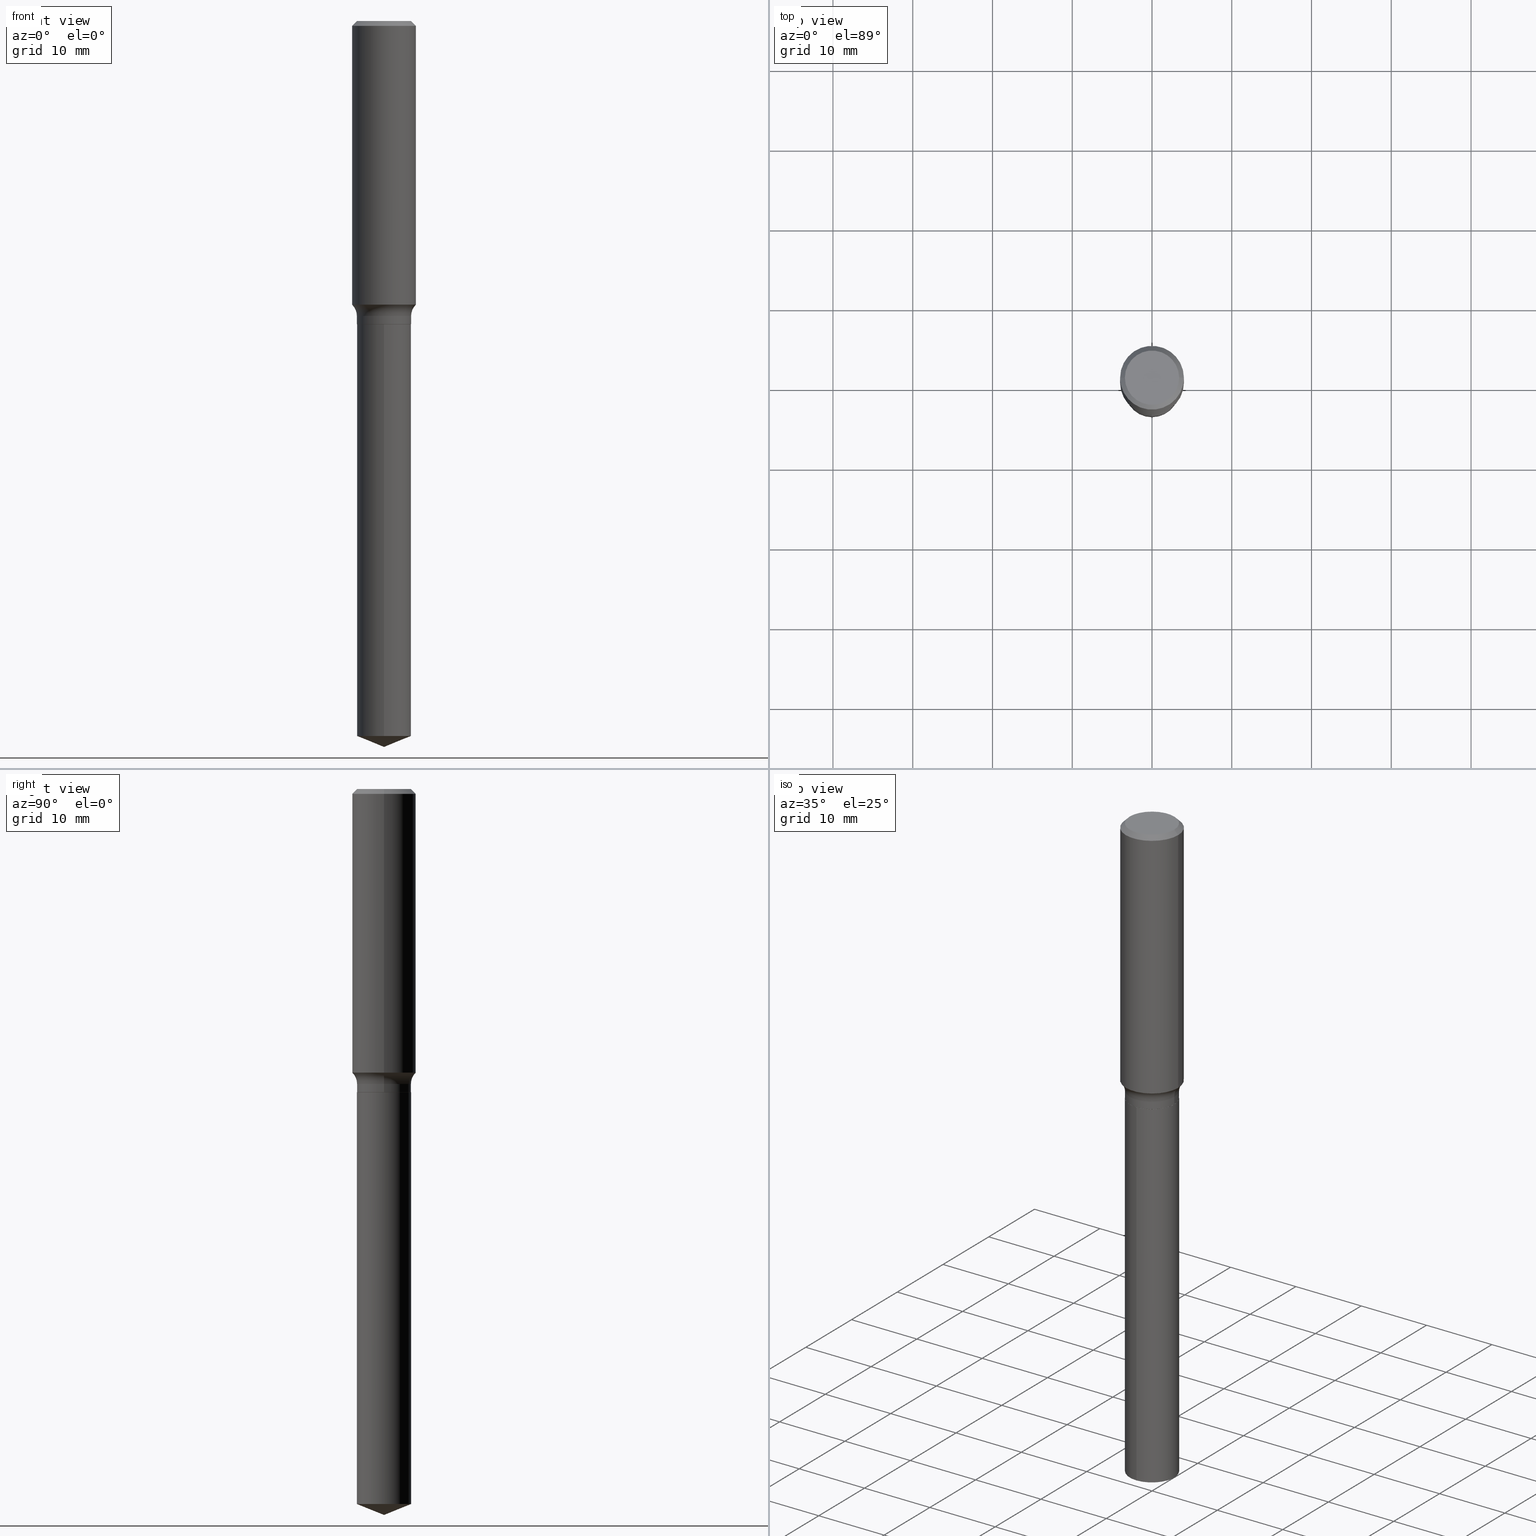
[diagram: canonical four-view strip — front | top / right | iso, engineering-drawing reading convention]
A machine part, canonical four-view strip (front | top / right | iso — engineering-drawing reading convention). The complete STEP part file that produces these views, byte-faithful:
ISO-10303-21;
HEADER;
FILE_DESCRIPTION (( 'STEP AP203' ),
    '1' );
FILE_NAME ('69261.STEP',
    '2024-04-19T17:33:43',
    ( '' ),
    ( '' ),
    'SwSTEP 2.0',
    'SolidWorks 2023',
    '' );
FILE_SCHEMA (( 'CONFIG_CONTROL_DESIGN' ));
ENDSEC;

DATA;
#1 = AXIS2_PLACEMENT_3D ( 'NONE', #333, #373, #66 ) ;
#2 = APPROVAL ( #421, 'UNSPECIFIED' ) ;
#3 = PERSON_AND_ORGANIZATION ( #263, #174 ) ;
#4 = DIRECTION ( 'NONE',  ( -2.445445601509706497E-29, 3.491514569259089389E-15, 1.000000000000000000 ) ) ;
#5 = MANIFOLD_SOLID_BREP ( 'Body-Move/Copy2[2]', #432 ) ;
#6 = CARTESIAN_POINT ( 'NONE',  ( 0.1575000000000000566, -1.099816621735587480E-15, 7.679978421878602237E-30 ) ) ;
#7 = ADVANCED_FACE ( 'NONE', ( #118 ), #454, .T. ) ;
#8 = DIRECTION ( 'NONE',  ( 1.000000000000000000, -6.982962677686265922E-15, 0.000000000000000000 ) ) ;
#9 = AXIS2_PLACEMENT_3D ( 'NONE', #445, #140, #371 ) ;
#10 = CC_DESIGN_PERSON_AND_ORGANIZATION_ASSIGNMENT ( #110, #260, ( #88 ) ) ;
#11 = FACE_OUTER_BOUND ( 'NONE', #22, .T. ) ;
#12 = CARTESIAN_POINT ( 'NONE',  ( 0.1338499999999999968, -9.346695544083067345E-16, 6.526762614402859683E-30 ) ) ;
#13 = ORIENTED_EDGE ( 'NONE', *, *, #102, .F. ) ;
#14 = ADVANCED_FACE ( 'NONE', ( #123 ), #349, .T. ) ;
#15 = DIRECTION ( 'NONE',  ( 1.000000000000000000, -6.982962677686267499E-15, 0.000000000000000000 ) ) ;
#16 = ORIENTED_EDGE ( 'NONE', *, *, #459, .T. ) ;
#17 = AXIS2_PLACEMENT_3D ( 'NONE', #203, #469, #472 ) ;
#18 = EDGE_CURVE ( 'NONE', #322, #356, #378, .T. ) ;
#19 = CARTESIAN_POINT ( 'NONE',  ( 3.560113488044320975E-29, -5.082898533087850950E-15, -1.455799999999999761 ) ) ;
#20 = EDGE_LOOP ( 'NONE', ( #261, #440, #364, #13 ) ) ;
#21 = CYLINDRICAL_SURFACE ( 'NONE', #92, 0.1338499999999999968 ) ;
#22 = EDGE_LOOP ( 'NONE', ( #133, #370, #131, #249 ) ) ;
#23 = CARTESIAN_POINT ( 'NONE',  ( 0.1338499999999999968, -6.157576489183768779E-15, -1.495900000000000230 ) ) ;
#24 = LOCAL_TIME ( 13, 33, 43.00000000000000000, #381 ) ;
#25 = VERTEX_POINT ( 'NONE', #298 ) ;
#26 = AXIS2_PLACEMENT_3D ( 'NONE', #407, #134, #285 ) ;
#27 = CYLINDRICAL_SURFACE ( 'NONE', #330, 0.1575000000000000566 ) ;
#28 = EDGE_CURVE ( 'NONE', #138, #57, #33, .T. ) ;
#29 = FACE_OUTER_BOUND ( 'NONE', #286, .T. ) ;
#30 = DIRECTION ( 'NONE',  ( -0.7071067811865450192, 2.468850131082230634E-15, -0.7071067811865500152 ) ) ;
#31 = EDGE_CURVE ( 'NONE', #322, #327, #107, .T. ) ;
#32 = CIRCLE ( 'NONE', #197, 0.1333499999999999963 ) ;
#33 = LINE ( 'NONE', #183, #278 ) ;
#34 = EDGE_CURVE ( 'NONE', #350, #57, #222, .T. ) ;
#35 = APPROVAL_DATE_TIME ( #377, #48 ) ;
#36 = PLANE ( 'NONE',  #319 ) ;
#37 = PERSON_AND_ORGANIZATION ( #263, #174 ) ;
#38 = CARTESIAN_POINT ( 'NONE',  ( 8.762031590209278139E-29, -1.251009670165531742E-14, -3.583000000000000185 ) ) ;
#39 = DIRECTION ( 'NONE',  ( -2.445445601509706497E-29, 3.491514569259089389E-15, 1.000000000000000000 ) ) ;
#40 = AXIS2_PLACEMENT_3D ( 'NONE', #267, #39, #269 ) ;
#41 = CIRCLE ( 'NONE', #447, 0.1575000000000001399 ) ;
#42 = EDGE_LOOP ( 'NONE', ( #408, #358, #318, #234 ) ) ;
#43 = PERSON_AND_ORGANIZATION ( #263, #174 ) ;
#44 = DIRECTION ( 'NONE',  ( 1.000000000000000000, -6.982962677686262766E-15, 0.000000000000000000 ) ) ;
#45 = ORIENTED_EDGE ( 'NONE', *, *, #34, .T. ) ;
#46 = CARTESIAN_POINT ( 'NONE',  ( -0.1575000000000000844, -3.768455484205395919E-15, -1.399852904454296887 ) ) ;
#47 = ORIENTED_EDGE ( 'NONE', *, *, #208, .T. ) ;
#48 = APPROVAL ( #192, 'UNSPECIFIED' ) ;
#49 = LINE ( 'NONE', #12, #272 ) ;
#50 = CIRCLE ( 'NONE', #124, 0.1338499999999999968 ) ;
#51 = AXIS2_PLACEMENT_3D ( 'NONE', #210, #287, #326 ) ;
#52 = DIRECTION ( 'NONE',  ( 1.000000000000000000, -6.982962677686266711E-15, 4.883557194083112901E-29 ) ) ;
#53 = ORIENTED_EDGE ( 'NONE', *, *, #459, .F. ) ;
#54 = DIRECTION ( 'NONE',  ( 1.000000000000000000, -6.982962677686262766E-15, 0.000000000000000000 ) ) ;
#55 = ORIENTED_EDGE ( 'NONE', *, *, #214, .T. ) ;
#56 = FACE_OUTER_BOUND ( 'NONE', #391, .T. ) ;
#57 = VERTEX_POINT ( 'NONE', #417 ) ;
#58 = AXIS2_PLACEMENT_3D ( 'NONE', #221, #308, #44 ) ;
#59 = FACE_OUTER_BOUND ( 'NONE', #315, .T. ) ;
#60 = ORIENTED_EDGE ( 'NONE', *, *, #218, .T. ) ;
#61 = LINE ( 'NONE', #374, #386 ) ;
#62 = ORIENTED_EDGE ( 'NONE', *, *, #479, .F. ) ;
#63 = DIRECTION ( 'NONE',  ( -2.445445601509706497E-29, 3.491514569259089389E-15, 1.000000000000000000 ) ) ;
#64 = AXIS2_PLACEMENT_3D ( 'NONE', #442, #176, #444 ) ;
#65 = VECTOR ( 'NONE', #346, 39.37007874015748143 ) ;
#66 = DIRECTION ( 'NONE',  ( -6.982962677686265133E-15, -1.000000000000000000, 4.081954417130015942E-15 ) ) ;
#67 = DIRECTION ( 'NONE',  ( 1.000000000000000000, -6.982962677686266711E-15, 4.876176775795935793E-29 ) ) ;
#68 = EDGE_CURVE ( 'NONE', #438, #327, #306, .T. ) ;
#69 = DATE_AND_TIME ( #414, #396 ) ;
#70 = DIRECTION ( 'NONE',  ( 1.000000000000000000, -6.982962677686267499E-15, 4.876176775795936353E-29 ) ) ;
#71 = ADVANCED_BREP_SHAPE_REPRESENTATION ( '69261', ( #347, #5, #354 ), #419 ) ;
#72 = AXIS2_PLACEMENT_3D ( 'NONE', #337, #384, #83 ) ;
#73 = CALENDAR_DATE ( 2024, 19, 4 ) ;
#74 = APPROVAL_PERSON_ORGANIZATION ( #43, #48, #483 ) ;
#75 = DIRECTION ( 'NONE',  ( -2.445468806185136597E-29, 3.491481338843145583E-15, 1.000000000000000000 ) ) ;
#76 = DIMENSIONAL_EXPONENTS ( 1.000000000000000000, 0.000000000000000000, 0.000000000000000000, 0.000000000000000000, 0.000000000000000000, 0.000000000000000000, 0.000000000000000000 ) ;
#77 = COORDINATED_UNIVERSAL_TIME_OFFSET ( 5, 0, .BEHIND. ) ;
#78 = FACE_OUTER_BOUND ( 'NONE', #100, .T. ) ;
#79 = EDGE_CURVE ( 'NONE', #451, #117, #422, .T. ) ;
#80 = APPROVAL_DATE_TIME ( #416, #2 ) ;
#81 = LINE ( 'NONE', #382, #65 ) ;
#82 = ADVANCED_FACE ( 'NONE', ( #78 ), #36, .F. ) ;
#83 = DIRECTION ( 'NONE',  ( -1.000000000000000000, 7.105427357601001859E-15, 0.000000000000000000 ) ) ;
#84 = CIRCLE ( 'NONE', #293, 0.1575000000000001399 ) ;
#85 = LINE ( 'NONE', #314, #418 ) ;
#86 = CC_DESIGN_PERSON_AND_ORGANIZATION_ASSIGNMENT ( #457, #336, ( #230 ) ) ;
#87 = APPROVAL_DATE_TIME ( #236, #294 ) ;
#88 = SECURITY_CLASSIFICATION ( '', '', #220 ) ;
#89 = CARTESIAN_POINT ( 'NONE',  ( 0.1333499999999999963, -6.155830748514348064E-15, -1.496400000000000396 ) ) ;
#90 = UNCERTAINTY_MEASURE_WITH_UNIT (LENGTH_MEASURE( 1.000000000000000082E-05 ), #179, 'distance_accuracy_value', 'NONE');
#91 = AXIS2_PLACEMENT_3D ( 'NONE', #168, #355, #54 ) ;
#92 = AXIS2_PLACEMENT_3D ( 'NONE', #365, #259, #67 ) ;
#93 = EDGE_CURVE ( 'NONE', #97, #324, #395, .T. ) ;
#94 = DIRECTION ( 'NONE',  ( -2.445468806185136597E-29, 3.491481338843145583E-15, 1.000000000000000000 ) ) ;
#95 = ORIENTED_EDGE ( 'NONE', *, *, #262, .F. ) ;
#96 = DIRECTION ( 'NONE',  ( -1.000000000000000000, 6.982962677686265922E-15, 0.000000000000000000 ) ) ;
#97 = VERTEX_POINT ( 'NONE', #461 ) ;
#98 = CARTESIAN_POINT ( 'NONE',  ( 3.658176787172346501E-29, -5.222906934775461847E-15, -1.495900000000000230 ) ) ;
#99 = TOROIDAL_SURFACE ( 'NONE', #329, 0.2118499999999999828, 0.07799999999999995826 ) ;
#100 = EDGE_LOOP ( 'NONE', ( #156, #121 ) ) ;
#101 = CARTESIAN_POINT ( 'NONE',  ( 0.1575000000000000844, -5.987376914763141792E-15, -1.399852904454296887 ) ) ;
#102 = EDGE_CURVE ( 'NONE', #324, #435, #190, .T. ) ;
#103 = EDGE_CURVE ( 'NONE', #163, #117, #81, .T. ) ;
#104 = ORIENTED_EDGE ( 'NONE', *, *, #307, .T. ) ;
#105 = DIRECTION ( 'NONE',  ( -2.445468806185136597E-29, 3.491481338843145583E-15, 1.000000000000000000 ) ) ;
#106 = DIRECTION ( 'NONE',  ( -2.445468806185136597E-29, 3.491481338843145583E-15, 1.000000000000000000 ) ) ;
#107 = CIRCLE ( 'NONE', #72, 0.07799999999999995826 ) ;
#108 = AXIS2_PLACEMENT_3D ( 'NONE', #255, #482, #215 ) ;
#109 = FACE_OUTER_BOUND ( 'NONE', #167, .T. ) ;
#110 = PERSON_AND_ORGANIZATION ( #263, #174 ) ;
#111 = ORIENTED_EDGE ( 'NONE', *, *, #380, .T. ) ;
#112 = PERSON_AND_ORGANIZATION ( #263, #174 ) ;
#113 = CARTESIAN_POINT ( 'NONE',  ( 0.1333499999999999963, -6.155830748514348064E-15, -1.496400000000000396 ) ) ;
#114 = AXIS2_PLACEMENT_3D ( 'NONE', #415, #75, #70 ) ;
#115 = APPROVAL_ROLE ( '' ) ;
#116 = PRODUCT_DEFINITION_FORMATION_WITH_SPECIFIED_SOURCE ( 'ANY', '', #207, .NOT_KNOWN. ) ;
#117 = VERTEX_POINT ( 'NONE', #491 ) ;
#118 = FACE_OUTER_BOUND ( 'NONE', #426, .T. ) ;
#119 = COORDINATED_UNIVERSAL_TIME_OFFSET ( 5, 0, .BEHIND. ) ;
#120 = LINE ( 'NONE', #151, #335 ) ;
#121 = ORIENTED_EDGE ( 'NONE', *, *, #93, .F. ) ;
#122 = CONICAL_SURFACE ( 'NONE', #91, 0.1333499999999999963, 0.7853981633972775267 ) ;
#123 = FACE_OUTER_BOUND ( 'NONE', #204, .T. ) ;
#124 = AXIS2_PLACEMENT_3D ( 'NONE', #275, #464, #15 ) ;
#125 = CALENDAR_DATE ( 2024, 19, 4 ) ;
#126 = DIRECTION ( 'NONE',  ( 1.000000000000000000, -6.982962677686268288E-15, 0.000000000000000000 ) ) ;
#127 = CC_DESIGN_PERSON_AND_ORGANIZATION_ASSIGNMENT ( #185, #295, ( #116 ) ) ;
#128 = TOROIDAL_SURFACE ( 'NONE', #321, 0.2118499999999999828, 0.07799999999999995826 ) ;
#129 = DIRECTION ( 'NONE',  ( -6.474490251793178629E-15, -0.9271838545667862030, 0.3746065934159147903 ) ) ;
#130 = AXIS2_PLACEMENT_3D ( 'NONE', #242, #392, #279 ) ;
#131 = ORIENTED_EDGE ( 'NONE', *, *, #479, .T. ) ;
#132 = DIRECTION ( 'NONE',  ( -2.445468806185136597E-29, 3.491481338843145583E-15, 1.000000000000000000 ) ) ;
#133 = ORIENTED_EDGE ( 'NONE', *, *, #103, .F. ) ;
#134 = DIRECTION ( 'NONE',  ( -2.445445601509706497E-29, 3.491514569259089389E-15, 1.000000000000000000 ) ) ;
#135 = ORIENTED_EDGE ( 'NONE', *, *, #28, .F. ) ;
#136 = FACE_OUTER_BOUND ( 'NONE', #243, .T. ) ;
#137 = AXIS2_PLACEMENT_3D ( 'NONE', #402, #429, #466 ) ;
#138 = VERTEX_POINT ( 'NONE', #38 ) ;
#139 = CC_DESIGN_APPROVAL ( #48, ( #116 ) ) ;
#140 = DIRECTION ( 'NONE',  ( 2.445445601509706217E-29, -3.491514569259089389E-15, -1.000000000000000000 ) ) ;
#141 = DIRECTION ( 'NONE',  ( 1.000000000000000000, -6.982962677686261977E-15, 0.000000000000000000 ) ) ;
#142 = DIRECTION ( 'NONE',  ( -2.445468806185136597E-29, 3.491481338843145583E-15, 1.000000000000000000 ) ) ;
#143 = ADVANCED_FACE ( 'NONE', ( #186 ), #148, .T. ) ;
#144 = AXIS2_PLACEMENT_3D ( 'NONE', #359, #132, #273 ) ;
#145 = CALENDAR_DATE ( 2024, 19, 4 ) ;
#146 = VERTEX_POINT ( 'NONE', #490 ) ;
#147 = CARTESIAN_POINT ( 'NONE',  ( 0.000000000000000000, 0.000000000000000000, 0.000000000000000000 ) ) ;
#148 = CYLINDRICAL_SURFACE ( 'NONE', #303, 0.1338499999999999968 ) ;
#149 = EDGE_CURVE ( 'NONE', #57, #394, #120, .T. ) ;
#150 = DATE_TIME_ROLE ( 'classification_date' ) ;
#151 = CARTESIAN_POINT ( 'NONE',  ( 9.510614518149305606E-16, 0.1338499999999947787, -1.496400000000000841 ) ) ;
#152 = LOCAL_TIME ( 13, 33, 43.00000000000000000, #77 ) ;
#153 = MECHANICAL_CONTEXT ( 'NONE', #481, 'mechanical' ) ;
#154 = DIRECTION ( 'NONE',  ( -2.445468806185136597E-29, 3.491481338843145583E-15, 1.000000000000000000 ) ) ;
#155 = DIRECTION ( 'NONE',  ( -2.445445601509706497E-29, 3.491514569259089389E-15, 1.000000000000000000 ) ) ;
#156 = ORIENTED_EDGE ( 'NONE', *, *, #311, .F. ) ;
#157 = ADVANCED_FACE ( 'NONE', ( #453 ), #353, .T. ) ;
#158 = DIRECTION ( 'NONE',  ( 1.000000000000000000, -6.982962677686265922E-15, 4.876176775795935793E-29 ) ) ;
#159 = AXIS2_PLACEMENT_3D ( 'NONE', #162, #246, #96 ) ;
#160 = CARTESIAN_POINT ( 'NONE',  ( -9.346695544082205515E-16, -0.1338500000000123480, -3.528921089671963607 ) ) ;
#161 = LOCAL_TIME ( 13, 33, 43.00000000000000000, #224 ) ;
#162 = CARTESIAN_POINT ( 'NONE',  ( 5.777420054612421980E-31, -8.248624663016985234E-17, -0.02362500000000015282 ) ) ;
#163 = VERTEX_POINT ( 'NONE', #201 ) ;
#164 = CYLINDRICAL_SURFACE ( 'NONE', #137, 0.1338499999999999968 ) ;
#165 = ORIENTED_EDGE ( 'NONE', *, *, #102, .T. ) ;
#166 = FACE_OUTER_BOUND ( 'NONE', #170, .T. ) ;
#167 = EDGE_LOOP ( 'NONE', ( #16, #169, #443, #238 ) ) ;
#168 = CARTESIAN_POINT ( 'NONE',  ( 3.659399521575439863E-29, -5.224652675444884140E-15, -1.496400000000000396 ) ) ;
#169 = ORIENTED_EDGE ( 'NONE', *, *, #18, .T. ) ;
#170 = EDGE_LOOP ( 'NONE', ( #200, #305, #449 ) ) ;
#171 = DIRECTION ( 'NONE',  ( 1.000000000000000000, -6.982962677686266711E-15, 4.883557194083112901E-29 ) ) ;
#172 = VECTOR ( 'NONE', #228, 39.37007874015748143 ) ;
#173 = ORIENTED_EDGE ( 'NONE', *, *, #486, .F. ) ;
#174 = ORGANIZATION ( 'UNSPECIFIED', 'UNSPECIFIED', '' ) ;
#175 = CARTESIAN_POINT ( 'NONE',  ( 3.560113488044320975E-29, -5.082898533087850950E-15, -1.455799999999999761 ) ) ;
#176 = DIRECTION ( 'NONE',  ( 2.438088387897960049E-29, -3.491481338843145188E-15, -1.000000000000000000 ) ) ;
#177 = LINE ( 'NONE', #217, #431 ) ;
#178 = VECTOR ( 'NONE', #427, 39.37007874015748143 ) ;
#179 =( CONVERSION_BASED_UNIT ( 'INCH', #338 ) LENGTH_UNIT ( ) NAMED_UNIT ( #76 ) );
#180 = DIRECTION ( 'NONE',  ( 6.588037525764790502E-15, 0.9271838545667887566, 0.3746065934159082955 ) ) ;
#181 = EDGE_CURVE ( 'NONE', #163, #146, #232, .T. ) ;
#182 = PERSON_AND_ORGANIZATION_ROLE ( 'creator' ) ;
#183 = CARTESIAN_POINT ( 'NONE',  ( 8.762101646129704419E-29, -1.250999724966648130E-14, -3.583000000000000185 ) ) ;
#184 = EDGE_CURVE ( 'NONE', #25, #327, #50, .T. ) ;
#185 = PERSON_AND_ORGANIZATION ( #263, #174 ) ;
#186 = FACE_OUTER_BOUND ( 'NONE', #211, .T. ) ;
#187 = CC_DESIGN_SECURITY_CLASSIFICATION ( #88, ( #116 ) ) ;
#188 = APPLICATION_PROTOCOL_DEFINITION ( 'international standard', 'config_control_design', 1994, #481 ) ;
#189 = AXIS2_PLACEMENT_3D ( 'NONE', #195, #351, #8 ) ;
#190 = LINE ( 'NONE', #113, #172 ) ;
#191 = ADVANCED_FACE ( 'NONE', ( #56 ), #99, .F. ) ;
#192 = APPROVAL_STATUS ( 'not_yet_approved' ) ;
#193 = ORIENTED_EDGE ( 'NONE', *, *, #368, .F. ) ;
#194 = ORIENTED_EDGE ( 'NONE', *, *, #465, .F. ) ;
#195 = CARTESIAN_POINT ( 'NONE',  ( 5.777420054612421980E-31, -8.248624663016985234E-17, -0.02362500000000015282 ) ) ;
#196 = ORIENTED_EDGE ( 'NONE', *, *, #18, .F. ) ;
#197 = AXIS2_PLACEMENT_3D ( 'NONE', #463, #430, #235 ) ;
#198 = DIRECTION ( 'NONE',  ( -2.445468806185136877E-29, 3.491481338843145188E-15, 1.000000000000000000 ) ) ;
#199 = CIRCLE ( 'NONE', #189, 0.1575000000000000011 ) ;
#200 = ORIENTED_EDGE ( 'NONE', *, *, #307, .F. ) ;
#201 = CARTESIAN_POINT ( 'NONE',  ( 0.1338749999999999940, -1.040731925365424925E-15, 4.101342130351390035E-18 ) ) ;
#202 = ORIENTED_EDGE ( 'NONE', *, *, #399, .F. ) ;
#203 = CARTESIAN_POINT ( 'NONE',  ( -1.002970424325032604E-46, 1.431975951230895391E-32, 4.101342130344482109E-18 ) ) ;
#204 = EDGE_LOOP ( 'NONE', ( #196, #47, #460, #401 ) ) ;
#205 = DIRECTION ( 'NONE',  ( -2.445445601509706497E-29, 3.491514569259089389E-15, 1.000000000000000000 ) ) ;
#206 = AXIS2_PLACEMENT_3D ( 'NONE', #437, #94, #244 ) ;
#207 = PRODUCT ( '69261', '69261', '', ( #153 ) ) ;
#208 = EDGE_CURVE ( 'NONE', #322, #451, #84, .T. ) ;
#209 = ORIENTED_EDGE ( 'NONE', *, *, #313, .T. ) ;
#210 = CARTESIAN_POINT ( 'NONE',  ( 3.659399521575438742E-29, -5.224652675444883351E-15, -1.496400000000000174 ) ) ;
#211 = EDGE_LOOP ( 'NONE', ( #45, #253, #348, #202 ) ) ;
#212 = CARTESIAN_POINT ( 'NONE',  ( 3.658176787172346501E-29, -5.222906934775461847E-15, -1.495900000000000230 ) ) ;
#213 = ORIENTED_EDGE ( 'NONE', *, *, #93, .T. ) ;
#214 = EDGE_CURVE ( 'NONE', #117, #356, #361, .T. ) ;
#215 = DIRECTION ( 'NONE',  ( 1.000000000000000000, -6.982962677686266711E-15, 4.876176775795935793E-29 ) ) ;
#216 = CIRCLE ( 'NONE', #280, 0.1338499999999999968 ) ;
#217 = CARTESIAN_POINT ( 'NONE',  ( -9.346695544082700525E-16, -0.1338500000000052148, -1.496399999999999730 ) ) ;
#218 = EDGE_CURVE ( 'NONE', #146, #163, #425, .T. ) ;
#219 = DIRECTION ( 'NONE',  ( -1.000000000000000000, 6.982962677686265922E-15, 0.000000000000000000 ) ) ;
#220 = SECURITY_CLASSIFICATION_LEVEL ( 'unclassified' ) ;
#221 = CARTESIAN_POINT ( 'NONE',  ( 3.659399521575439863E-29, -5.224652675444884140E-15, -1.496400000000000396 ) ) ;
#222 = CIRCLE ( 'NONE', #40, 0.1338499999999999968 ) ;
#223 = CIRCLE ( 'NONE', #51, 0.1338499999999999968 ) ;
#224 = COORDINATED_UNIVERSAL_TIME_OFFSET ( 5, 0, .BEHIND. ) ;
#225 = CARTESIAN_POINT ( 'NONE',  ( -8.751531957252333368E-28, 1.249511565384764858E-13, 35.78707874015748303 ) ) ;
#226 = EDGE_CURVE ( 'NONE', #435, #25, #49, .T. ) ;
#227 = APPROVAL_ROLE ( '' ) ;
#228 = DIRECTION ( 'NONE',  ( 0.7071067811864267805, -2.468850131080992517E-15, 0.7071067811866682540 ) ) ;
#229 =( LENGTH_UNIT ( ) NAMED_UNIT ( * ) SI_UNIT ( $, .METRE. ) );
#230 = PRODUCT_DEFINITION ( 'UNKNOWN', '', #116, #366 ) ;
#231 = ORIENTED_EDGE ( 'NONE', *, *, #181, .F. ) ;
#232 = CIRCLE ( 'NONE', #17, 0.1338749999999999940 ) ;
#233 = CARTESIAN_POINT ( 'NONE',  ( -0.1338499999999999968, 9.510614518148940758E-16, -6.583994618306190922E-30 ) ) ;
#234 = ORIENTED_EDGE ( 'NONE', *, *, #313, .F. ) ;
#235 = DIRECTION ( 'NONE',  ( 1.000000000000000000, -6.982962677686262766E-15, 0.000000000000000000 ) ) ;
#236 = DATE_AND_TIME ( #125, #152 ) ;
#237 = CARTESIAN_POINT ( 'NONE',  ( -0.1333499999999999963, -4.277143937308791554E-15, -1.496400000000000396 ) ) ;
#238 = ORIENTED_EDGE ( 'NONE', *, *, #79, .F. ) ;
#239 = CC_DESIGN_PERSON_AND_ORGANIZATION_ASSIGNMENT ( #37, #182, ( #116 ) ) ;
#240 = CIRCLE ( 'NONE', #477, 0.1338499999999999968 ) ;
#241 = CONICAL_SURFACE ( 'NONE', #372, 97.44436430772833546, 1.186823891356144633 ) ;
#242 = CARTESIAN_POINT ( 'NONE',  ( 3.560113488044320975E-29, -5.082898533087850950E-15, -1.455799999999999761 ) ) ;
#243 = EDGE_LOOP ( 'NONE', ( #475, #387, #289, #473 ) ) ;
#244 = DIRECTION ( 'NONE',  ( 1.000000000000000000, -6.982962677686266711E-15, 4.876170806578254279E-29 ) ) ;
#245 = ORIENTED_EDGE ( 'NONE', *, *, #31, .F. ) ;
#246 = DIRECTION ( 'NONE',  ( 2.445468806185136597E-29, -3.491481338843145583E-15, -1.000000000000000000 ) ) ;
#247 = ADVANCED_FACE ( 'NONE', ( #400 ), #164, .T. ) ;
#248 = APPLICATION_CONTEXT ( 'configuration controlled 3d designs of mechanical parts and assemblies' ) ;
#249 = ORIENTED_EDGE ( 'NONE', *, *, #345, .T. ) ;
#250 = DIRECTION ( 'NONE',  ( -2.445468806185136597E-29, 3.491481338843145583E-15, 1.000000000000000000 ) ) ;
#251 = EDGE_LOOP ( 'NONE', ( #276, #398, #209, #194 ) ) ;
#252 = DIRECTION ( 'NONE',  ( 1.000000000000000000, -6.982962677686267499E-15, 4.876176775795936353E-29 ) ) ;
#253 = ORIENTED_EDGE ( 'NONE', *, *, #149, .T. ) ;
#254 = CC_DESIGN_DATE_AND_TIME_ASSIGNMENT ( #69, #150, ( #88 ) ) ;
#255 = CARTESIAN_POINT ( 'NONE',  ( 0.000000000000000000, 0.000000000000000000, 0.000000000000000000 ) ) ;
#256 = ADVANCED_FACE ( 'NONE', ( #357 ), #122, .T. ) ;
#257 = DIRECTION ( 'NONE',  ( 1.000000000000000000, -6.982962677686268288E-15, 0.000000000000000000 ) ) ;
#258 = CIRCLE ( 'NONE', #468, 0.07799999999999995826 ) ;
#259 = DIRECTION ( 'NONE',  ( -2.445468806185136597E-29, 3.491481338843145583E-15, 1.000000000000000000 ) ) ;
#260 = PERSON_AND_ORGANIZATION_ROLE ( 'classification_officer' ) ;
#261 = ORIENTED_EDGE ( 'NONE', *, *, #311, .T. ) ;
#262 = EDGE_CURVE ( 'NONE', #97, #438, #434, .T. ) ;
#263 = PERSON ( 'UNSPECIFIED', 'UNSPECIFIED', 'UNSPECIFIED', ('UNSPECIFIED'), ('UNSPECIFIED'), ('UNSPECIFIED') ) ;
#264 =( NAMED_UNIT ( * ) PLANE_ANGLE_UNIT ( ) SI_UNIT ( $, .RADIAN. ) );
#265 = DIRECTION ( 'NONE',  ( -6.982962677686265133E-15, -1.000000000000000000, 4.081954417130015942E-15 ) ) ;
#266 = APPROVAL_PERSON_ORGANIZATION ( #112, #2, #227 ) ;
#267 = CARTESIAN_POINT ( 'NONE',  ( 8.629819280289458970E-29, -1.232122967236090696E-14, -3.528921089671964495 ) ) ;
#268 = DIRECTION ( 'NONE',  ( 1.000000000000000000, 0.000000000000000000, 0.000000000000000000 ) ) ;
#269 = DIRECTION ( 'NONE',  ( -6.982962677686265133E-15, -1.000000000000000000, 4.081954417130015942E-15 ) ) ;
#270 = ADVANCED_FACE ( 'NONE', ( #11 ), #309, .T. ) ;
#271 = CARTESIAN_POINT ( 'NONE',  ( -0.1575000000000000566, 1.119104808822158195E-15, -7.747322767151479787E-30 ) ) ;
#272 = VECTOR ( 'NONE', #198, 39.37007874015748143 ) ;
#273 = DIRECTION ( 'NONE',  ( 1.000000000000000000, -6.982962677686265922E-15, 0.000000000000000000 ) ) ;
#274 = CARTESIAN_POINT ( 'NONE',  ( -0.1575000000000000011, -1.365918461006703856E-15, -0.02362500000000015282 ) ) ;
#275 = CARTESIAN_POINT ( 'NONE',  ( 3.560113488044320975E-29, -5.082898533087850950E-15, -1.455799999999999761 ) ) ;
#276 = ORIENTED_EDGE ( 'NONE', *, *, #208, .F. ) ;
#277 = AXIS2_PLACEMENT_3D ( 'NONE', #328, #439, #219 ) ;
#278 = VECTOR ( 'NONE', #180, 39.37007874015748854 ) ;
#279 = DIRECTION ( 'NONE',  ( 1.000000000000000000, -6.982962677686267499E-15, 0.000000000000000000 ) ) ;
#280 = AXIS2_PLACEMENT_3D ( 'NONE', #212, #105, #474 ) ;
#281 = ORIENTED_EDGE ( 'NONE', *, *, #149, .F. ) ;
#282 = CARTESIAN_POINT ( 'NONE',  ( 3.423296611090645878E-29, -4.887560293027554312E-15, -1.399852904454296887 ) ) ;
#283 = ORIENTED_EDGE ( 'NONE', *, *, #368, .T. ) ;
#284 = ADVANCED_FACE ( 'NONE', ( #166 ), #241, .T. ) ;
#285 = DIRECTION ( 'NONE',  ( -6.982962677686265133E-15, -1.000000000000000000, 4.081954417130015942E-15 ) ) ;
#286 = EDGE_LOOP ( 'NONE', ( #60, #360 ) ) ;
#287 = DIRECTION ( 'NONE',  ( -2.445445601509706497E-29, 3.491514569259089389E-15, 1.000000000000000000 ) ) ;
#288 = CC_DESIGN_APPROVAL ( #2, ( #230 ) ) ;
#289 = ORIENTED_EDGE ( 'NONE', *, *, #184, .F. ) ;
#290 = PLANE ( 'NONE',  #64 ) ;
#291 = FACE_OUTER_BOUND ( 'NONE', #367, .T. ) ;
#292 = CARTESIAN_POINT ( 'NONE',  ( 3.423296611090645878E-29, -4.887560293027554312E-15, -1.399852904454296887 ) ) ;
#293 = AXIS2_PLACEMENT_3D ( 'NONE', #282, #393, #126 ) ;
#294 = APPROVAL ( #375, 'UNSPECIFIED' ) ;
#295 = PERSON_AND_ORGANIZATION_ROLE ( 'design_supplier' ) ;
#296 = VERTEX_POINT ( 'NONE', #323 ) ;
#297 = APPLICATION_PROTOCOL_DEFINITION ( 'international standard', 'config_control_design', 1994, #248 ) ;
#298 = CARTESIAN_POINT ( 'NONE',  ( 0.1338499999999999968, -6.017568087496157882E-15, -1.455799999999999761 ) ) ;
#299 = PERSON_AND_ORGANIZATION ( #263, #174 ) ;
#300 = DIRECTION ( 'NONE',  ( -2.445445601509706497E-29, 3.491514569259089389E-15, 1.000000000000000000 ) ) ;
#301 = LOCAL_TIME ( 13, 33, 43.00000000000000000, #119 ) ;
#302 = PRODUCT_RELATED_PRODUCT_CATEGORY ( 'detail', '', ( #207 ) ) ;
#303 = AXIS2_PLACEMENT_3D ( 'NONE', #376, #4, #265 ) ;
#304 = DIRECTION ( 'NONE',  ( 1.000000000000000000, -6.982962677686262766E-15, 0.000000000000000000 ) ) ;
#305 = ORIENTED_EDGE ( 'NONE', *, *, #28, .T. ) ;
#306 = LINE ( 'NONE', #233, #476 ) ;
#307 = EDGE_CURVE ( 'NONE', #138, #350, #85, .T. ) ;
#308 = DIRECTION ( 'NONE',  ( -2.445468806185136597E-29, 3.491481338843145583E-15, 1.000000000000000000 ) ) ;
#309 = CONICAL_SURFACE ( 'NONE', #159, 0.1575000000000000011, 0.7853981633974447263 ) ;
#310 = CIRCLE ( 'NONE', #1, 0.1338499999999999968 ) ;
#311 = EDGE_CURVE ( 'NONE', #324, #97, #32, .T. ) ;
#312 = FACE_OUTER_BOUND ( 'NONE', #251, .T. ) ;
#313 = EDGE_CURVE ( 'NONE', #327, #25, #342, .T. ) ;
#314 = CARTESIAN_POINT ( 'NONE',  ( 8.762031590209278139E-29, -1.251009670165531742E-14, -3.583000000000000185 ) ) ;
#315 = EDGE_LOOP ( 'NONE', ( #231, #344, #55, #62 ) ) ;
#316 = DIRECTION ( 'NONE',  ( -2.445468806185136597E-29, 3.491481338843145583E-15, 1.000000000000000000 ) ) ;
#317 = CC_DESIGN_PERSON_AND_ORGANIZATION_ASSIGNMENT ( #3, #388, ( #207 ) ) ;
#318 = ORIENTED_EDGE ( 'NONE', *, *, #226, .T. ) ;
#319 = AXIS2_PLACEMENT_3D ( 'NONE', #339, #389, #158 ) ;
#320 = CARTESIAN_POINT ( 'NONE',  ( -8.751531957252333368E-28, 1.249511565384764858E-13, 35.78707874015748303 ) ) ;
#321 = AXIS2_PLACEMENT_3D ( 'NONE', #175, #409, #171 ) ;
#322 = VERTEX_POINT ( 'NONE', #46 ) ;
#323 = CARTESIAN_POINT ( 'NONE',  ( -9.346695544082700525E-16, -0.1338500000000052148, -1.496399999999999730 ) ) ;
#324 = VERTEX_POINT ( 'NONE', #89 ) ;
#325 = PRODUCT_DEFINITION_SHAPE ( 'NONE', 'NONE',  #230 ) ;
#326 = DIRECTION ( 'NONE',  ( -6.982962677686265133E-15, -1.000000000000000000, 4.081954417130015942E-15 ) ) ;
#327 = VERTEX_POINT ( 'NONE', #397 ) ;
#328 = CARTESIAN_POINT ( 'NONE',  ( 5.777420054612421980E-31, -8.248624663016985234E-17, -0.02362500000000015282 ) ) ;
#329 = AXIS2_PLACEMENT_3D ( 'NONE', #19, #316, #52 ) ;
#330 = AXIS2_PLACEMENT_3D ( 'NONE', #331, #142, #252 ) ;
#331 = CARTESIAN_POINT ( 'NONE',  ( 0.000000000000000000, 0.000000000000000000, 0.000000000000000000 ) ) ;
#332 = CYLINDRICAL_SURFACE ( 'NONE', #108, 0.1338499999999999968 ) ;
#333 = CARTESIAN_POINT ( 'NONE',  ( 3.659399521575438742E-29, -5.224652675444883351E-15, -1.496400000000000174 ) ) ;
#334 = ORIENTED_EDGE ( 'NONE', *, *, #184, .T. ) ;
#335 = VECTOR ( 'NONE', #300, 39.37007874015748143 ) ;
#336 = PERSON_AND_ORGANIZATION_ROLE ( 'creator' ) ;
#337 = CARTESIAN_POINT ( 'NONE',  ( -0.2118499999999999828, -3.577613747380078829E-15, -1.455799999999999761 ) ) ;
#338 = LENGTH_MEASURE_WITH_UNIT ( LENGTH_MEASURE( 0.02539999999999999897 ), #229 );
#339 = CARTESIAN_POINT ( 'NONE',  ( 1.518723566718794660E-29, -8.290222482508405301E-15, -1.496400000000000396 ) ) ;
#340 = CARTESIAN_POINT ( 'NONE',  ( 3.659399521575439863E-29, -5.224652675444884140E-15, -1.496400000000000396 ) ) ;
#341 = APPROVAL_PERSON_ORGANIZATION ( #299, #294, #115 ) ;
#342 = CIRCLE ( 'NONE', #130, 0.1338499999999999968 ) ;
#343 = CIRCLE ( 'NONE', #26, 0.1338499999999999968 ) ;
#344 = ORIENTED_EDGE ( 'NONE', *, *, #103, .T. ) ;
#345 = EDGE_CURVE ( 'NONE', #356, #117, #199, .T. ) ;
#346 = DIRECTION ( 'NONE',  ( 0.7071067811865450192, -7.319954787623246579E-15, -0.7071067811865500152 ) ) ;
#347 = MANIFOLD_SOLID_BREP ( 'Body-Move/Copy2[1]', #492 ) ;
#348 = ORIENTED_EDGE ( 'NONE', *, *, #380, .F. ) ;
#349 = CYLINDRICAL_SURFACE ( 'NONE', #114, 0.1575000000000000566 ) ;
#350 = VERTEX_POINT ( 'NONE', #160 ) ;
#351 = DIRECTION ( 'NONE',  ( -2.445468806185136597E-29, 3.491481338843145583E-15, 1.000000000000000000 ) ) ;
#352 = ADVANCED_FACE ( 'NONE', ( #312 ), #128, .F. ) ;
#353 = CONICAL_SURFACE ( 'NONE', #385, 0.1333499999999999963, 0.7853981633972775267 ) ;
#354 = AXIS2_PLACEMENT_3D ( 'NONE', #147, #450, #268 ) ;
#355 = DIRECTION ( 'NONE',  ( -2.445468806185136597E-29, 3.491481338843145583E-15, 1.000000000000000000 ) ) ;
#356 = VERTEX_POINT ( 'NONE', #274 ) ;
#357 = FACE_OUTER_BOUND ( 'NONE', #20, .T. ) ;
#358 = ORIENTED_EDGE ( 'NONE', *, *, #488, .T. ) ;
#359 = CARTESIAN_POINT ( 'NONE',  ( 5.777420054612421980E-31, -8.248624663016985234E-17, -0.02362500000000015282 ) ) ;
#360 = ORIENTED_EDGE ( 'NONE', *, *, #181, .T. ) ;
#361 = CIRCLE ( 'NONE', #144, 0.1575000000000000011 ) ;
#362 = ADVANCED_FACE ( 'NONE', ( #291 ), #478, .F. ) ;
#363 = DIRECTION ( 'NONE',  ( -6.982962677686265133E-15, -1.000000000000000000, 3.498761904101830713E-15 ) ) ;
#364 = ORIENTED_EDGE ( 'NONE', *, *, #410, .F. ) ;
#365 = CARTESIAN_POINT ( 'NONE',  ( 0.000000000000000000, 0.000000000000000000, 0.000000000000000000 ) ) ;
#366 = DESIGN_CONTEXT ( 'detailed design', #248, 'design' ) ;
#367 = EDGE_LOOP ( 'NONE', ( #111, #283 ) ) ;
#368 = EDGE_CURVE ( 'NONE', #394, #296, #310, .T. ) ;
#369 = CARTESIAN_POINT ( 'NONE',  ( 9.510614518149806532E-16, 0.1338499999999947510, -1.496400000000000841 ) ) ;
#370 = ORIENTED_EDGE ( 'NONE', *, *, #218, .F. ) ;
#371 = DIRECTION ( 'NONE',  ( 6.982962677686265922E-15, 1.000000000000000000, -3.491514569259089389E-15 ) ) ;
#372 = AXIS2_PLACEMENT_3D ( 'NONE', #320, #205, #363 ) ;
#373 = DIRECTION ( 'NONE',  ( -2.445445601509706497E-29, 3.491514569259089389E-15, 1.000000000000000000 ) ) ;
#374 = CARTESIAN_POINT ( 'NONE',  ( -0.1575000000000000011, 1.017330375105417098E-15, -0.02362500000000015282 ) ) ;
#375 = APPROVAL_STATUS ( 'not_yet_approved' ) ;
#376 = CARTESIAN_POINT ( 'NONE',  ( 3.659399521575438742E-29, -5.224652675444883351E-15, -1.496400000000000174 ) ) ;
#377 = DATE_AND_TIME ( #145, #161 ) ;
#378 = LINE ( 'NONE', #271, #462 ) ;
#379 = ADVANCED_FACE ( 'NONE', ( #59 ), #433, .T. ) ;
#380 = EDGE_CURVE ( 'NONE', #296, #394, #223, .T. ) ;
#381 = COORDINATED_UNIVERSAL_TIME_OFFSET ( 5, 0, .BEHIND. ) ;
#382 = CARTESIAN_POINT ( 'NONE',  ( 0.1575000000000000011, -1.163014681279185964E-15, -0.02362500000000015282 ) ) ;
#383 = CALENDAR_DATE ( 2024, 19, 4 ) ;
#384 = DIRECTION ( 'NONE',  ( 7.105427357601001859E-15, 1.000000000000000000, -3.491481338843145583E-15 ) ) ;
#385 = AXIS2_PLACEMENT_3D ( 'NONE', #340, #154, #304 ) ;
#386 = VECTOR ( 'NONE', #30, 39.37007874015748143 ) ;
#387 = ORIENTED_EDGE ( 'NONE', *, *, #68, .T. ) ;
#388 = PERSON_AND_ORGANIZATION_ROLE ( 'design_owner' ) ;
#389 = DIRECTION ( 'NONE',  ( -2.438088387897960049E-29, 3.491481338843145188E-15, 1.000000000000000000 ) ) ;
#390 = CC_DESIGN_DATE_AND_TIME_ASSIGNMENT ( #423, #448, ( #230 ) ) ;
#391 = EDGE_LOOP ( 'NONE', ( #245, #53, #485, #334 ) ) ;
#392 = DIRECTION ( 'NONE',  ( -2.445468806185136597E-29, 3.491481338843145583E-15, 1.000000000000000000 ) ) ;
#393 = DIRECTION ( 'NONE',  ( -2.445468806185136597E-29, 3.491481338843145583E-15, 1.000000000000000000 ) ) ;
#394 = VERTEX_POINT ( 'NONE', #369 ) ;
#395 = CIRCLE ( 'NONE', #58, 0.1333499999999999963 ) ;
#396 = LOCAL_TIME ( 13, 33, 43.00000000000000000, #489 ) ;
#397 = CARTESIAN_POINT ( 'NONE',  ( -0.1338499999999999968, -4.201841282116762520E-15, -1.455799999999999761 ) ) ;
#398 = ORIENTED_EDGE ( 'NONE', *, *, #31, .T. ) ;
#399 = EDGE_CURVE ( 'NONE', #350, #296, #177, .T. ) ;
#400 = FACE_OUTER_BOUND ( 'NONE', #470, .T. ) ;
#401 = ORIENTED_EDGE ( 'NONE', *, *, #345, .F. ) ;
#402 = CARTESIAN_POINT ( 'NONE',  ( 3.659399521575438742E-29, -5.224652675444883351E-15, -1.496400000000000174 ) ) ;
#403 = EDGE_LOOP ( 'NONE', ( #95, #213, #165, #467 ) ) ;
#404 = VECTOR ( 'NONE', #458, 39.37007874015748143 ) ;
#405 = DIRECTION ( 'NONE',  ( 1.000000000000000000, -6.982962677686267499E-15, 0.000000000000000000 ) ) ;
#406 = ORIENTED_EDGE ( 'NONE', *, *, #486, .T. ) ;
#407 = CARTESIAN_POINT ( 'NONE',  ( 8.629819280289458970E-29, -1.232122967236090696E-14, -3.528921089671964495 ) ) ;
#408 = ORIENTED_EDGE ( 'NONE', *, *, #68, .F. ) ;
#409 = DIRECTION ( 'NONE',  ( -2.445468806185136597E-29, 3.491481338843145583E-15, 1.000000000000000000 ) ) ;
#410 = EDGE_CURVE ( 'NONE', #435, #438, #216, .T. ) ;
#411 = CC_DESIGN_APPROVAL ( #294, ( #88 ) ) ;
#412 = CARTESIAN_POINT ( 'NONE',  ( -0.1338499999999999968, -4.201841282116762520E-15, -1.495900000000000230 ) ) ;
#413 = DIRECTION ( 'NONE',  ( -6.982962677686266711E-15, -1.000000000000000000, 3.491481338843145583E-15 ) ) ;
#414 = CALENDAR_DATE ( 2024, 19, 4 ) ;
#415 = CARTESIAN_POINT ( 'NONE',  ( 0.000000000000000000, 0.000000000000000000, 0.000000000000000000 ) ) ;
#416 = DATE_AND_TIME ( #383, #24 ) ;
#417 = CARTESIAN_POINT ( 'NONE',  ( 9.510614518149802588E-16, 0.1338499999999877010, -3.528921089671964939 ) ) ;
#418 = VECTOR ( 'NONE', #129, 39.37007874015748143 ) ;
#419 =( GEOMETRIC_REPRESENTATION_CONTEXT ( 3 ) GLOBAL_UNCERTAINTY_ASSIGNED_CONTEXT ( ( #90 ) ) GLOBAL_UNIT_ASSIGNED_CONTEXT ( ( #179, #264, #455 ) ) REPRESENTATION_CONTEXT ( 'NONE', 'WORKASPACE' ) );
#420 = DIRECTION ( 'NONE',  ( -6.982962677686265133E-15, -1.000000000000000000, 3.498761904101830713E-15 ) ) ;
#421 = APPROVAL_STATUS ( 'not_yet_approved' ) ;
#422 = LINE ( 'NONE', #6, #404 ) ;
#423 = DATE_AND_TIME ( #73, #301 ) ;
#424 = DIRECTION ( 'NONE',  ( -2.445468806185136877E-29, 3.491481338843145188E-15, 1.000000000000000000 ) ) ;
#425 = CIRCLE ( 'NONE', #206, 0.1338749999999999940 ) ;
#426 = EDGE_LOOP ( 'NONE', ( #135, #104, #173 ) ) ;
#427 = DIRECTION ( 'NONE',  ( -0.7071067811864267805, 7.493145998869918709E-15, 0.7071067811866682540 ) ) ;
#428 = ADVANCED_FACE ( 'NONE', ( #29 ), #290, .F. ) ;
#429 = DIRECTION ( 'NONE',  ( -2.445445601509706497E-29, 3.491514569259089389E-15, 1.000000000000000000 ) ) ;
#430 = DIRECTION ( 'NONE',  ( -2.445468806185136597E-29, 3.491481338843145583E-15, 1.000000000000000000 ) ) ;
#431 = VECTOR ( 'NONE', #63, 39.37007874015748143 ) ;
#432 = CLOSED_SHELL ( 'NONE', ( #256, #379, #452, #352, #441, #471, #191, #14, #270, #428, #82, #157 ) ) ;
#433 = CONICAL_SURFACE ( 'NONE', #277, 0.1575000000000000011, 0.7853981633974447263 ) ;
#434 = LINE ( 'NONE', #237, #178 ) ;
#435 = VERTEX_POINT ( 'NONE', #23 ) ;
#436 = SHAPE_DEFINITION_REPRESENTATION ( #325, #71 ) ;
#437 = CARTESIAN_POINT ( 'NONE',  ( -1.002970424325032604E-46, 1.431975951230895391E-32, 4.101342130344482109E-18 ) ) ;
#438 = VERTEX_POINT ( 'NONE', #412 ) ;
#439 = DIRECTION ( 'NONE',  ( 2.445468806185136597E-29, -3.491481338843145583E-15, -1.000000000000000000 ) ) ;
#440 = ORIENTED_EDGE ( 'NONE', *, *, #262, .T. ) ;
#441 = ADVANCED_FACE ( 'NONE', ( #136 ), #332, .T. ) ;
#442 = CARTESIAN_POINT ( 'NONE',  ( -5.014852121625163022E-47, 7.159879756154476955E-33, 2.050671065172241055E-18 ) ) ;
#443 = ORIENTED_EDGE ( 'NONE', *, *, #214, .F. ) ;
#444 = DIRECTION ( 'NONE',  ( -1.000000000000000000, 6.982962677686265922E-15, -4.876176775795935793E-29 ) ) ;
#445 = CARTESIAN_POINT ( 'NONE',  ( 3.659399521575438742E-29, -5.224652675444883351E-15, -1.496400000000000174 ) ) ;
#446 = FACE_OUTER_BOUND ( 'NONE', #42, .T. ) ;
#447 = AXIS2_PLACEMENT_3D ( 'NONE', #292, #106, #257 ) ;
#448 = DATE_TIME_ROLE ( 'creation_date' ) ;
#449 = ORIENTED_EDGE ( 'NONE', *, *, #34, .F. ) ;
#450 = DIRECTION ( 'NONE',  ( 0.000000000000000000, 0.000000000000000000, 1.000000000000000000 ) ) ;
#451 = VERTEX_POINT ( 'NONE', #101 ) ;
#452 = ADVANCED_FACE ( 'NONE', ( #109 ), #27, .T. ) ;
#453 = FACE_OUTER_BOUND ( 'NONE', #403, .T. ) ;
#454 = CONICAL_SURFACE ( 'NONE', #484, 97.44436430772833546, 1.186823891356144633 ) ;
#455 =( NAMED_UNIT ( * ) SI_UNIT ( $, .STERADIAN. ) SOLID_ANGLE_UNIT ( ) );
#456 = ORIENTED_EDGE ( 'NONE', *, *, #399, .T. ) ;
#457 = PERSON_AND_ORGANIZATION ( #263, #174 ) ;
#458 = DIRECTION ( 'NONE',  ( -2.445468806185136877E-29, 3.491481338843145188E-15, 1.000000000000000000 ) ) ;
#459 = EDGE_CURVE ( 'NONE', #451, #322, #41, .T. ) ;
#460 = ORIENTED_EDGE ( 'NONE', *, *, #79, .T. ) ;
#461 = CARTESIAN_POINT ( 'NONE',  ( -0.1333499999999999963, -4.274494710134679564E-15, -1.496400000000000396 ) ) ;
#462 = VECTOR ( 'NONE', #424, 39.37007874015748143 ) ;
#463 = CARTESIAN_POINT ( 'NONE',  ( 3.659399521575439863E-29, -5.224652675444884140E-15, -1.496400000000000396 ) ) ;
#464 = DIRECTION ( 'NONE',  ( -2.445468806185136597E-29, 3.491481338843145583E-15, 1.000000000000000000 ) ) ;
#465 = EDGE_CURVE ( 'NONE', #451, #25, #258, .T. ) ;
#466 = DIRECTION ( 'NONE',  ( -6.982962677686265133E-15, -1.000000000000000000, 4.081954417130015942E-15 ) ) ;
#467 = ORIENTED_EDGE ( 'NONE', *, *, #488, .F. ) ;
#468 = AXIS2_PLACEMENT_3D ( 'NONE', #480, #413, #141 ) ;
#469 = DIRECTION ( 'NONE',  ( -2.445468806185136597E-29, 3.491481338843145583E-15, 1.000000000000000000 ) ) ;
#470 = EDGE_LOOP ( 'NONE', ( #281, #406, #456, #193 ) ) ;
#471 = ADVANCED_FACE ( 'NONE', ( #446 ), #21, .T. ) ;
#472 = DIRECTION ( 'NONE',  ( 1.000000000000000000, -6.982962677686266711E-15, 4.876170806578254279E-29 ) ) ;
#473 = ORIENTED_EDGE ( 'NONE', *, *, #226, .F. ) ;
#474 = DIRECTION ( 'NONE',  ( 1.000000000000000000, -6.982962677686267499E-15, 0.000000000000000000 ) ) ;
#475 = ORIENTED_EDGE ( 'NONE', *, *, #410, .T. ) ;
#476 = VECTOR ( 'NONE', #487, 39.37007874015748143 ) ;
#477 = AXIS2_PLACEMENT_3D ( 'NONE', #98, #250, #405 ) ;
#478 = PLANE ( 'NONE',  #9 ) ;
#479 = EDGE_CURVE ( 'NONE', #146, #356, #61, .T. ) ;
#480 = CARTESIAN_POINT ( 'NONE',  ( 0.2118499999999999828, -6.562239176355685928E-15, -1.455799999999999761 ) ) ;
#481 = APPLICATION_CONTEXT ( 'configuration controlled 3d designs of mechanical parts and assemblies' ) ;
#482 = DIRECTION ( 'NONE',  ( -2.445468806185136597E-29, 3.491481338843145583E-15, 1.000000000000000000 ) ) ;
#483 = APPROVAL_ROLE ( '' ) ;
#484 = AXIS2_PLACEMENT_3D ( 'NONE', #225, #155, #420 ) ;
#485 = ORIENTED_EDGE ( 'NONE', *, *, #465, .T. ) ;
#486 = EDGE_CURVE ( 'NONE', #57, #350, #343, .T. ) ;
#487 = DIRECTION ( 'NONE',  ( -2.445468806185136877E-29, 3.491481338843145188E-15, 1.000000000000000000 ) ) ;
#488 = EDGE_CURVE ( 'NONE', #438, #435, #240, .T. ) ;
#489 = COORDINATED_UNIVERSAL_TIME_OFFSET ( 5, 0, .BEHIND. ) ;
#490 = CARTESIAN_POINT ( 'NONE',  ( -0.1338749999999999940, 9.760872517903331886E-16, 4.101342130337800673E-18 ) ) ;
#491 = CARTESIAN_POINT ( 'NONE',  ( 0.1575000000000000011, -1.182302868365756679E-15, -0.02362500000000015282 ) ) ;
#492 = CLOSED_SHELL ( 'NONE', ( #143, #284, #7, #247, #362 ) ) ;
ENDSEC;
END-ISO-10303-21;
